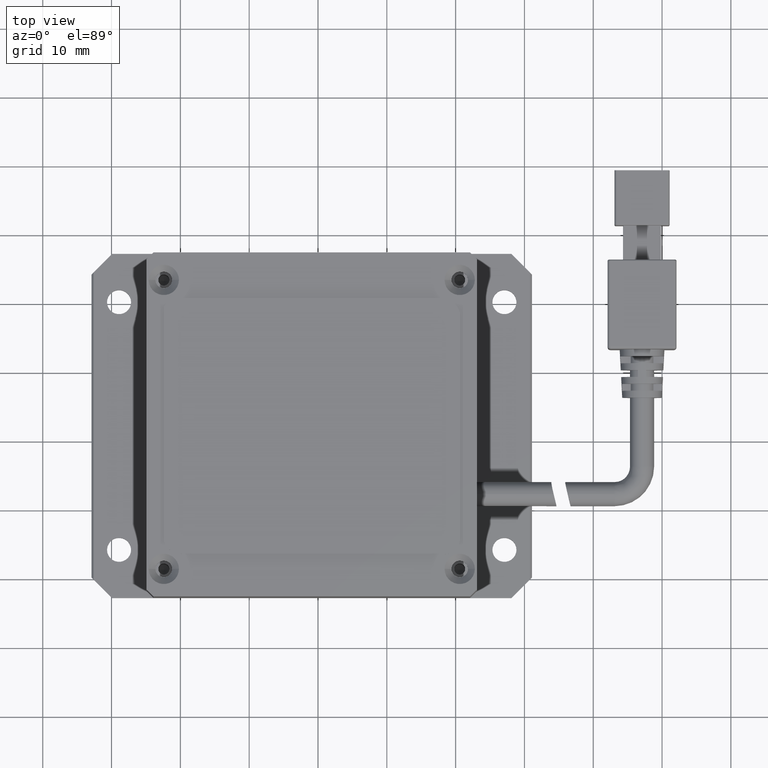
[diagram: clean part render]
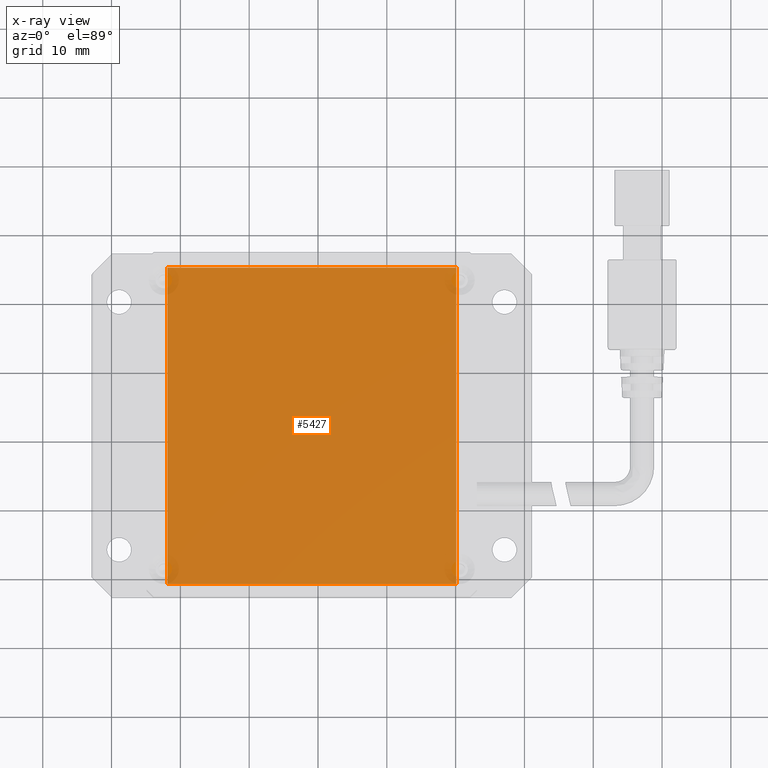
[diagram: x-ray — body ghosted, one internal face saturated and labeled with its STEP entity id]
A machine part, top view, then the same camera in x-ray: the body is ghosted and one INTERNAL B-rep face — a face not visible from any outside direction — is saturated and labeled: STEP entity #5427.
In plain terms, the highlighted planar face has unit normal (0, -0, 1).
Its self-contained STEP definition (entity closure, byte-faithful):
#708 = ORIENTED_EDGE ( 'NONE', *, *, #9272, .T. ) ;
#921 = CARTESIAN_POINT ( 'NONE',  ( -21.90683466972126700, 25.29095074455903000, -1.630813539765796300E-011 ) ) ;
#1096 = FACE_OUTER_BOUND ( 'NONE', #5494, .T. ) ;
#1406 = ORIENTED_EDGE ( 'NONE', *, *, #11615, .T. ) ;
#1902 = CARTESIAN_POINT ( 'NONE',  ( 20.09316533027873300, -20.70904925544096300, -1.630813539765796300E-011 ) ) ;
#2004 = LINE ( 'NONE', #11465, #5742 ) ;
#3086 = DIRECTION ( 'NONE',  ( -1.000000000000000000, 0.0000000000000000000, 0.0000000000000000000 ) ) ;
#3133 = DIRECTION ( 'NONE',  ( 0.0000000000000000000, -0.0000000000000000000, 1.000000000000000000 ) ) ;
#3543 = AXIS2_PLACEMENT_3D ( 'NONE', #12604, #3133, #14182 ) ;
#4389 = DIRECTION ( 'NONE',  ( 7.542275982507859600E-017, -1.000000000000000000, 0.0000000000000000000 ) ) ;
#5427 = ADVANCED_FACE ( 'NONE', ( #1096 ), #14118, .F. ) ;
#5494 = EDGE_LOOP ( 'NONE', ( #12230, #1406, #14412, #708 ) ) ;
#5742 = VECTOR ( 'NONE', #14625, 1000.000000000000000 ) ;
#5838 = VECTOR ( 'NONE', #3086, 1000.000000000000000 ) ;
#5964 = VERTEX_POINT ( 'NONE', #1902 ) ;
#6303 = VECTOR ( 'NONE', #4389, 1000.000000000000000 ) ;
#7299 = VERTEX_POINT ( 'NONE', #921 ) ;
#7519 = CARTESIAN_POINT ( 'NONE',  ( 20.09316533027873000, 25.29095074455903000, -1.630813539765796300E-011 ) ) ;
#8224 = VERTEX_POINT ( 'NONE', #10435 ) ;
#9114 = DIRECTION ( 'NONE',  ( -1.508455196501571900E-016, 1.000000000000000000, 0.0000000000000000000 ) ) ;
#9272 = EDGE_CURVE ( 'NONE', #5964, #14518, #14257, .T. ) ;
#10435 = CARTESIAN_POINT ( 'NONE',  ( 20.09316533027873300, 25.29095074455903000, -1.630813539765796300E-011 ) ) ;
#10493 = LINE ( 'NONE', #7519, #6303 ) ;
#11465 = CARTESIAN_POINT ( 'NONE',  ( 20.09316533027873000, 25.29095074455903000, -1.630813539765796300E-011 ) ) ;
#11615 = EDGE_CURVE ( 'NONE', #7299, #8224, #2004, .T. ) ;
#11908 = CARTESIAN_POINT ( 'NONE',  ( -21.90683466972126000, -20.70904925544096300, -1.630813539765796300E-011 ) ) ;
#12230 = ORIENTED_EDGE ( 'NONE', *, *, #16787, .T. ) ;
#12604 = CARTESIAN_POINT ( 'NONE',  ( -0.9068346697212632500, 2.290950744559034900, -1.630813539765796300E-011 ) ) ;
#12618 = LINE ( 'NONE', #20167, #16818 ) ;
#14118 = PLANE ( 'NONE',  #3543 ) ;
#14182 = DIRECTION ( 'NONE',  ( 0.0000000000000000000, 1.000000000000000000, 0.0000000000000000000 ) ) ;
#14257 = LINE ( 'NONE', #17272, #5838 ) ;
#14412 = ORIENTED_EDGE ( 'NONE', *, *, #19845, .T. ) ;
#14518 = VERTEX_POINT ( 'NONE', #11908 ) ;
#14625 = DIRECTION ( 'NONE',  ( 1.000000000000000000, -0.0000000000000000000, -0.0000000000000000000 ) ) ;
#16787 = EDGE_CURVE ( 'NONE', #14518, #7299, #12618, .T. ) ;
#16818 = VECTOR ( 'NONE', #9114, 1000.000000000000000 ) ;
#17272 = CARTESIAN_POINT ( 'NONE',  ( 20.09316533027873300, -20.70904925544096300, -1.630813539765796300E-011 ) ) ;
#19845 = EDGE_CURVE ( 'NONE', #8224, #5964, #10493, .T. ) ;
#20167 = CARTESIAN_POINT ( 'NONE',  ( -21.90683466972126700, 25.29095074455903000, -1.630813539765796300E-011 ) ) ;